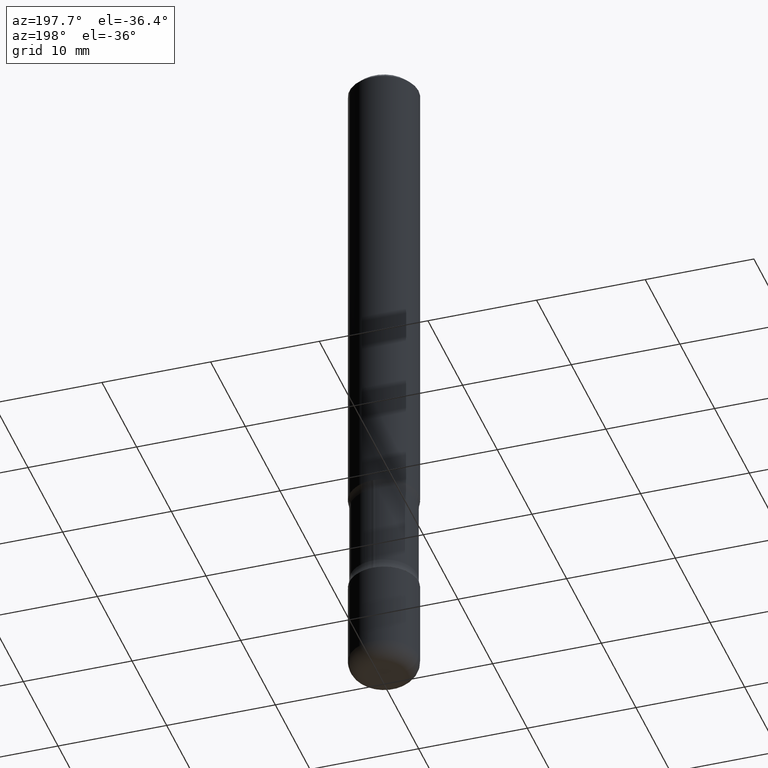
[diagram: clean part render]
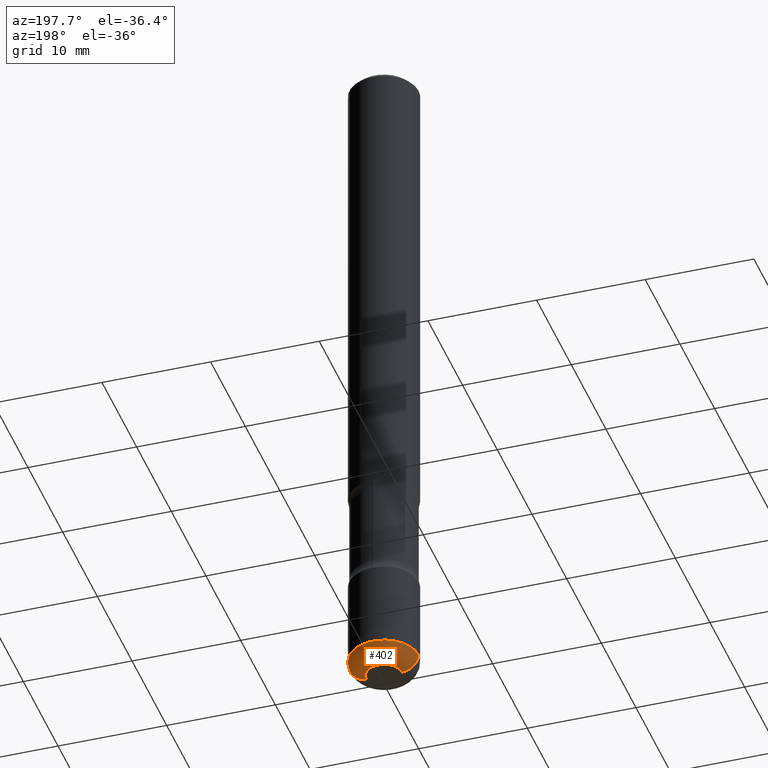
[diagram: same view with one face highlighted and labeled with its STEP entity id]
A machine part, auxiliary view. The second image highlights one B-rep face of the part: STEP entity #402.
In plain terms, the highlighted toroidal blend (fillet) surface has major radius 1.651 mm and minor (blend) radius 1.524 mm.
Its self-contained STEP definition (entity closure, byte-faithful):
#10 = DIRECTION ( 'NONE',  ( 1.000000000000000000, -6.982962677686262766E-15, 0.000000000000000000 ) ) ;
#79 = EDGE_LOOP ( 'NONE', ( #91, #472, #419, #358 ) ) ;
#91 = ORIENTED_EDGE ( 'NONE', *, *, #269, .T. ) ;
#115 = CARTESIAN_POINT ( 'NONE',  ( 0.06500000000000000222, -8.973107040826881753E-15, -2.440000000000000391 ) ) ;
#123 = VERTEX_POINT ( 'NONE', #642 ) ;
#128 = CARTESIAN_POINT ( 'NONE',  ( 5.966943887091733341E-29, -8.519214466777275048E-15, -2.440000000000000391 ) ) ;
#134 = TOROIDAL_SURFACE ( 'NONE', #662, 0.06500000000000000222, 0.05999999999999968553 ) ;
#144 = CIRCLE ( 'NONE', #591, 0.06500000000000001610 ) ;
#184 = CARTESIAN_POINT ( 'NONE',  ( -0.06500000000000001610, -7.948943307970475008E-15, -2.499999999999999556 ) ) ;
#187 = CARTESIAN_POINT ( 'NONE',  ( 5.966943887091733341E-29, -8.519214466777275048E-15, -2.440000000000000391 ) ) ;
#191 = VERTEX_POINT ( 'NONE', #663 ) ;
#194 = AXIS2_PLACEMENT_3D ( 'NONE', #187, #316, #10 ) ;
#195 = DIRECTION ( 'NONE',  ( -2.445468806185136597E-29, 3.491481338843145583E-15, 1.000000000000000000 ) ) ;
#239 = DIRECTION ( 'NONE',  ( 1.000000000000000000, -6.982962677686272233E-15, 0.000000000000000000 ) ) ;
#269 = EDGE_CURVE ( 'NONE', #191, #348, #144, .T. ) ;
#272 = CIRCLE ( 'NONE', #554, 0.05999999999999969247 ) ;
#286 = CARTESIAN_POINT ( 'NONE',  ( 6.113672015462840371E-29, -8.728703347107863365E-15, -2.499999999999999556 ) ) ;
#316 = DIRECTION ( 'NONE',  ( -2.445468806185136597E-29, 3.491481338843145583E-15, 1.000000000000000000 ) ) ;
#336 = EDGE_CURVE ( 'NONE', #123, #441, #539, .T. ) ;
#348 = VERTEX_POINT ( 'NONE', #184 ) ;
#356 = DIRECTION ( 'NONE',  ( 7.105427357601001859E-15, 1.000000000000000000, -3.491481338843145583E-15 ) ) ;
#358 = ORIENTED_EDGE ( 'NONE', *, *, #756, .F. ) ;
#364 = CARTESIAN_POINT ( 'NONE',  ( -0.06500000000000000222, -8.057361688533210306E-15, -2.440000000000000391 ) ) ;
#375 = FACE_OUTER_BOUND ( 'NONE', #79, .T. ) ;
#402 = ADVANCED_FACE ( 'NONE', ( #375 ), #134, .T. ) ;
#416 = DIRECTION ( 'NONE',  ( -2.445468806185136597E-29, 3.491481338843145583E-15, 1.000000000000000000 ) ) ;
#419 = ORIENTED_EDGE ( 'NONE', *, *, #336, .F. ) ;
#435 = DIRECTION ( 'NONE',  ( 1.000000000000000000, -6.982962677686264344E-15, 4.883557194083112340E-29 ) ) ;
#441 = VERTEX_POINT ( 'NONE', #745 ) ;
#452 = CIRCLE ( 'NONE', #782, 0.05999999999999969247 ) ;
#472 = ORIENTED_EDGE ( 'NONE', *, *, #697, .T. ) ;
#539 = CIRCLE ( 'NONE', #194, 0.1250000000000000000 ) ;
#554 = AXIS2_PLACEMENT_3D ( 'NONE', #115, #716, #795 ) ;
#591 = AXIS2_PLACEMENT_3D ( 'NONE', #286, #416, #239 ) ;
#642 = CARTESIAN_POINT ( 'NONE',  ( 0.1249999999999998473, -9.392084801488056809E-15, -2.440000000000000391 ) ) ;
#661 = DIRECTION ( 'NONE',  ( -1.000000000000000000, 7.105427357600994759E-15, 0.000000000000000000 ) ) ;
#662 = AXIS2_PLACEMENT_3D ( 'NONE', #128, #195, #435 ) ;
#663 = CARTESIAN_POINT ( 'NONE',  ( 0.06500000000000001610, -9.182595921157470070E-15, -2.499999999999999556 ) ) ;
#697 = EDGE_CURVE ( 'NONE', #348, #441, #452, .T. ) ;
#716 = DIRECTION ( 'NONE',  ( -6.982962677686266711E-15, -1.000000000000000000, 3.491481338843145583E-15 ) ) ;
#745 = CARTESIAN_POINT ( 'NONE',  ( -0.1249999999999998473, -7.631036047077151393E-15, -2.440000000000000391 ) ) ;
#756 = EDGE_CURVE ( 'NONE', #191, #123, #272, .T. ) ;
#782 = AXIS2_PLACEMENT_3D ( 'NONE', #364, #356, #661 ) ;
#795 = DIRECTION ( 'NONE',  ( 1.000000000000000000, -6.982962677686272233E-15, 0.000000000000000000 ) ) ;